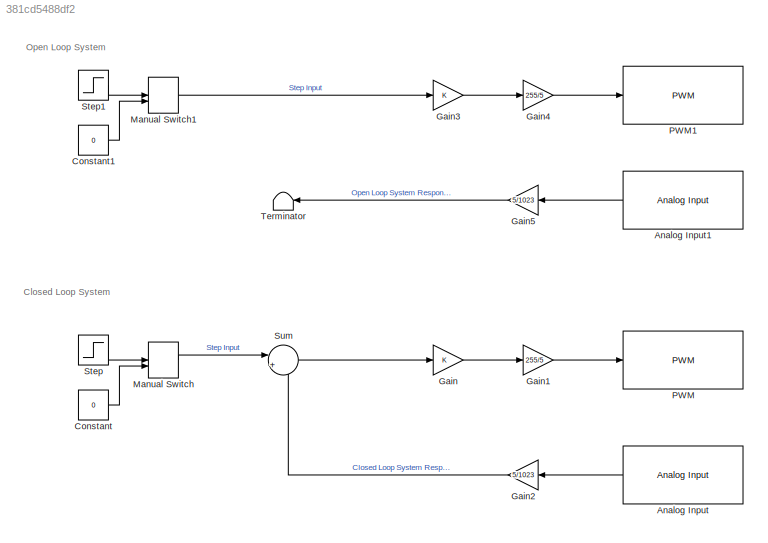
MODEL slx_381cd5488df2
KIND model
CONFIG AbsTol = auto
CONFIG EnableMultiTasking = on
CONFIG FixedStep = 0.001
CONFIG MaxStep = auto
CONFIG MinStep = auto
CONFIG RelTol = 1e-3
CONFIG SampleTimeConstraint = Unconstrained
CONFIG SolverName = FixedStepDiscrete
CONFIG StartTime = 0.0
CONFIG StopTime = 10
BLOCK [Reference] Analog Input  REF=arduinolib/Analog Input
  NameLocation = top
  SourceBlock = arduinolib/Analog Input
  SourceType = Arduino Analog Input
BLOCK [Reference] Analog Input1  REF=arduinolib/Analog Input
  NameLocation = top
  SourceBlock = arduinolib/Analog Input
  SourceType = Arduino Analog Input
BLOCK [Constant] Constant
  Value = 0
BLOCK [Constant] Constant1
  Value = 0
BLOCK [Gain] Gain
BLOCK [Gain] Gain1
  Gain = 255/5
BLOCK [Gain] Gain2
  Gain = 5/1023
  NameLocation = top
BLOCK [Gain] Gain3
BLOCK [Gain] Gain4
  Gain = 255/5
BLOCK [Gain] Gain5
  Gain = 5/1023
  NameLocation = top
BLOCK [ManualSwitch] Manual Switch
BLOCK [ManualSwitch] Manual Switch1
BLOCK [Reference] PWM  REF=arduinolib/PWM
  SourceBlock = arduinolib/PWM
  SourceType = Arduino PWM
BLOCK [Reference] PWM1  REF=arduinolib/PWM
  SourceBlock = arduinolib/PWM
  SourceType = Arduino PWM
BLOCK [Step] Step
  SampleTime = 0
BLOCK [Step] Step1
  SampleTime = 0
BLOCK [Sum] Sum
  Inputs = |+-
BLOCK [Terminator] Terminator
  NameLocation = top
ANNOTATION (root): Closed Loop System
ANNOTATION (root): Open Loop System
LINE Analog Input1:1 -> Gain5:1
LINE Analog Input:1 -> Gain2:1
LINE Constant1:1 -> Manual Switch1:2
LINE Constant:1 -> Manual Switch:2
LINE Gain1:1 -> PWM:1
LINE Gain2:1 -> Sum:2
LINE Gain3:1 -> Gain4:1
LINE Gain4:1 -> PWM1:1
LINE Gain5:1 -> Terminator:1
LINE Gain:1 -> Gain1:1
LINE Manual Switch1:1 -> Gain3:1
LINE Manual Switch:1 -> Sum:1
LINE Step1:1 -> Manual Switch1:1
LINE Step:1 -> Manual Switch:1
LINE Sum:1 -> Gain:1
